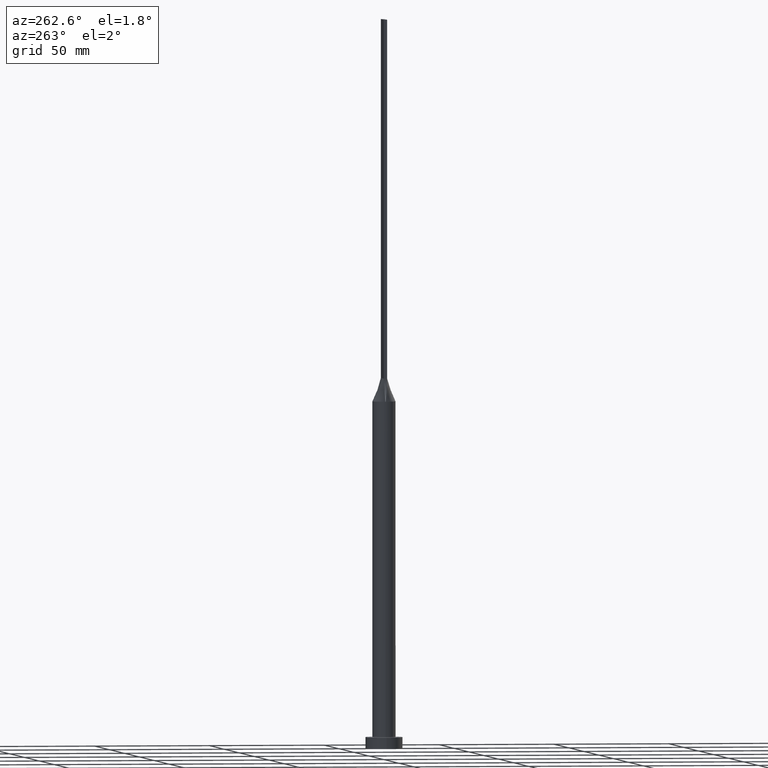
[diagram: clean part render]
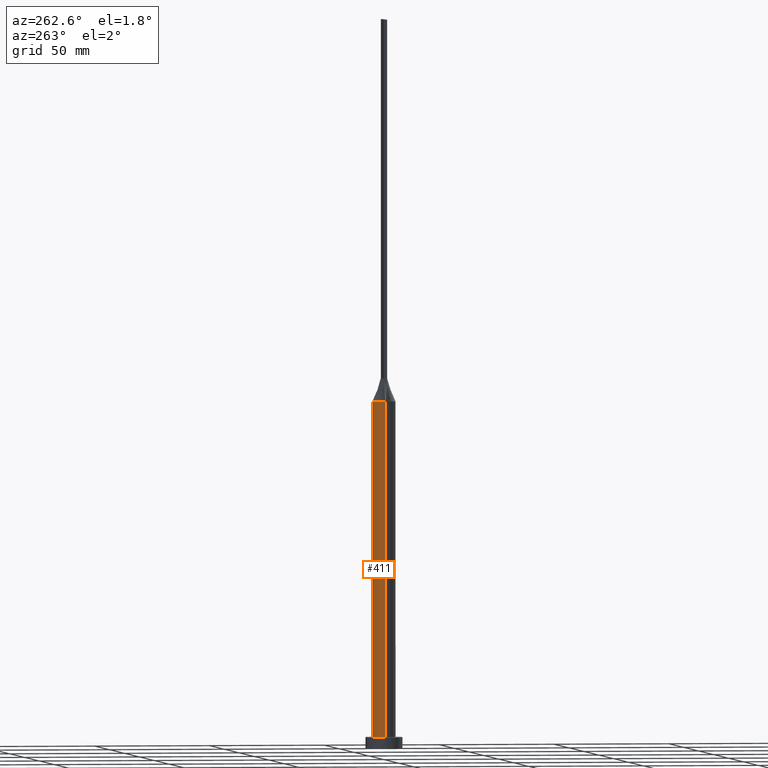
[diagram: same view with one face highlighted and labeled with its STEP entity id]
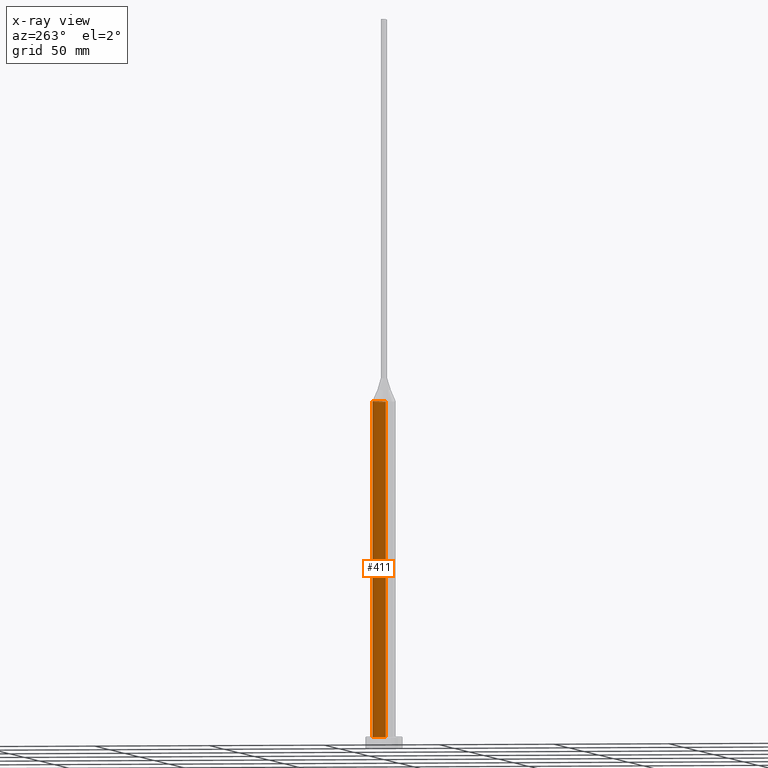
[diagram: x-ray of the same camera — body ghosted, the highlighted face saturated]
A machine part, auxiliary view. The second image highlights one B-rep face of the part: STEP entity #411.
The next image is the same camera in x-ray: the body ghosted, the highlighted face saturated — about 0% of this face is hidden behind the body in this view.
In plain terms, the highlighted cylindrical surface (edge-blend (fillet) strip) has radius 5 mm, axis along (-0, -0, -1).
Its self-contained STEP definition (entity closure, byte-faithful):
#1 = EDGE_CURVE ( 'NONE', #397, #456, #499, .T. ) ;
#2 = CARTESIAN_POINT ( 'NONE',  ( -4.938831943662458812, 0.7798155886440081286, 150.0000000000000000 ) ) ;
#11 = DIRECTION ( 'NONE',  ( 1.000000000000000000, 0.000000000000000000, 0.000000000000000000 ) ) ;
#20 = CARTESIAN_POINT ( 'NONE',  ( 0.000000000000000000, 0.000000000000000000, 150.0000000000000000 ) ) ;
#29 = VECTOR ( 'NONE', #381, 1000.000000000000000 ) ;
#36 = VERTEX_POINT ( 'NONE', #251 ) ;
#40 = CARTESIAN_POINT ( 'NONE',  ( 4.874625637456157179, 1.186344398896585606, 150.0000000000000568 ) ) ;
#63 = DIRECTION ( 'NONE',  ( 0.000000000000000000, 0.000000000000000000, 1.000000000000000000 ) ) ;
#66 = EDGE_CURVE ( 'NONE', #549, #453, #144, .T. ) ;
#69 = CIRCLE ( 'NONE', #155, 5.000000000000000000 ) ;
#77 = CARTESIAN_POINT ( 'NONE',  ( -0.7119876437238006339, 4.961551549233178982, 149.9999999999999432 ) ) ;
#80 = CARTESIAN_POINT ( 'NONE',  ( -4.753727492665067444, 1.629988260829202007, 150.0000000000000568 ) ) ;
#85 = CARTESIAN_POINT ( 'NONE',  ( 2.643217737595826566, 4.256483892511437439, 150.0000000000000568 ) ) ;
#95 = AXIS2_PLACEMENT_3D ( 'NONE', #292, #97, #330 ) ;
#97 = DIRECTION ( 'NONE',  ( 0.000000000000000000, 0.000000000000000000, 1.000000000000000000 ) ) ;
#107 = ORIENTED_EDGE ( 'NONE', *, *, #211, .T. ) ;
#124 = AXIS2_PLACEMENT_3D ( 'NONE', #612, #567, #334 ) ;
#133 = CARTESIAN_POINT ( 'NONE',  ( 4.029217956433126524, 3.021257902548482477, 150.0000000000000000 ) ) ;
#141 = CARTESIAN_POINT ( 'NONE',  ( 3.168723755431093192, 3.881165404529570040, 149.9999999999999716 ) ) ;
#144 = LINE ( 'NONE', #571, #215 ) ;
#155 = AXIS2_PLACEMENT_3D ( 'NONE', #20, #554, #462 ) ;
#172 = CARTESIAN_POINT ( 'NONE',  ( -4.029217956433124748, 3.021257902548482033, 150.0000000000000000 ) ) ;
#186 = CARTESIAN_POINT ( 'NONE',  ( 0.3560391241594590972, 5.000000000000001776, 150.0000000000000568 ) ) ;
#211 = EDGE_CURVE ( 'NONE', #453, #322, #503, .T. ) ;
#215 = VECTOR ( 'NONE', #338, 1000.000000000000000 ) ;
#224 = ORIENTED_EDGE ( 'NONE', *, *, #1, .F. ) ;
#229 = ORIENTED_EDGE ( 'NONE', *, *, #432, .F. ) ;
#232 = CARTESIAN_POINT ( 'NONE',  ( 4.332026455536839293, 2.547220758687718689, 150.0000000000000000 ) ) ;
#235 = LINE ( 'NONE', #423, #29 ) ;
#246 = CARTESIAN_POINT ( 'NONE',  ( -4.938831943662458812, 0.7798155886440081286, 150.0000000000000000 ) ) ;
#251 = CARTESIAN_POINT ( 'NONE',  ( -4.999812818728077701, -1.193032336741890821E-15, 150.0000000000000000 ) ) ;
#256 = CARTESIAN_POINT ( 'NONE',  ( 0.000000000000000000, 0.000000000000000000, 5.000000000000000000 ) ) ;
#269 = CARTESIAN_POINT ( 'NONE',  ( 1.400150253878312823, 4.812847332616943419, 149.9999999999999716 ) ) ;
#272 = CARTESIAN_POINT ( 'NONE',  ( -2.353781608410062010, 4.424438117685770777, 149.9999999999999432 ) ) ;
#279 = CARTESIAN_POINT ( 'NONE',  ( 2.353781608410062454, 4.424438117685770777, 150.0000000000000000 ) ) ;
#292 = CARTESIAN_POINT ( 'NONE',  ( 0.000000000000000000, 0.000000000000000000, 150.0000000000000000 ) ) ;
#310 = AXIS2_PLACEMENT_3D ( 'NONE', #256, #63, #11 ) ;
#312 = CARTESIAN_POINT ( 'NONE',  ( 4.753727492665065668, 1.629988260829201563, 150.0000000000000000 ) ) ;
#315 = CARTESIAN_POINT ( 'NONE',  ( 0.7119876437238013001, 4.961551549233180758, 149.9999999999999716 ) ) ;
#319 = CARTESIAN_POINT ( 'NONE',  ( -1.732223102076449806, 4.702695359254402518, 149.9999999999999432 ) ) ;
#322 = VERTEX_POINT ( 'NONE', #598 ) ;
#325 = CARTESIAN_POINT ( 'NONE',  ( -1.400150253878312823, 4.812847332616943419, 149.9999999999999432 ) ) ;
#329 = EDGE_CURVE ( 'NONE', #456, #36, #69, .T. ) ;
#330 = DIRECTION ( 'NONE',  ( 1.000000000000000000, 0.000000000000000000, 0.000000000000000000 ) ) ;
#334 = DIRECTION ( 'NONE',  ( -1.000000000000000000, 0.000000000000000000, 0.000000000000000000 ) ) ;
#338 = DIRECTION ( 'NONE',  ( -0.000000000000000000, -0.000000000000000000, -1.000000000000000000 ) ) ;
#350 = ORIENTED_EDGE ( 'NONE', *, *, #329, .F. ) ;
#358 = CARTESIAN_POINT ( 'NONE',  ( -4.332026455536841070, 2.547220758687717801, 150.0000000000000000 ) ) ;
#378 = CARTESIAN_POINT ( 'NONE',  ( 5.000000000000000000, 6.123233995736766282E-16, 5.000000000000000000 ) ) ;
#381 = DIRECTION ( 'NONE',  ( -0.000000000000000000, -0.000000000000000000, -1.000000000000000000 ) ) ;
#397 = VERTEX_POINT ( 'NONE', #515 ) ;
#403 = EDGE_CURVE ( 'NONE', #36, #322, #235, .T. ) ;
#411 = ADVANCED_FACE ( 'NONE', ( #429 ), #480, .T. ) ;
#422 = CARTESIAN_POINT ( 'NONE',  ( 4.999812818728077701, 1.241126956226958231E-15, 150.0000000000000000 ) ) ;
#423 = CARTESIAN_POINT ( 'NONE',  ( -5.000000000000000000, 0.000000000000000000, 150.0000000000000000 ) ) ;
#424 = CARTESIAN_POINT ( 'NONE',  ( 1.732223102076450250, 4.702695359254404295, 149.9999999999999716 ) ) ;
#428 = CARTESIAN_POINT ( 'NONE',  ( -2.643217737595827455, 4.256483892511438327, 150.0000000000000000 ) ) ;
#429 = FACE_OUTER_BOUND ( 'NONE', #558, .T. ) ;
#432 = EDGE_CURVE ( 'NONE', #549, #397, #513, .T. ) ;
#451 = ORIENTED_EDGE ( 'NONE', *, *, #403, .F. ) ;
#453 = VERTEX_POINT ( 'NONE', #378 ) ;
#456 = VERTEX_POINT ( 'NONE', #246 ) ;
#459 = CARTESIAN_POINT ( 'NONE',  ( -3.404830936252120299, 3.673931880027067720, 150.0000000000000000 ) ) ;
#462 = DIRECTION ( 'NONE',  ( 1.000000000000000000, 0.000000000000000000, 0.000000000000000000 ) ) ;
#470 = CARTESIAN_POINT ( 'NONE',  ( -3.168723755431092748, 3.881165404529570484, 150.0000000000000000 ) ) ;
#480 = CYLINDRICAL_SURFACE ( 'NONE', #124, 5.000000000000000000 ) ;
#499 = B_SPLINE_CURVE_WITH_KNOTS ( 'NONE', 3,
 ( #552, #40, #312, #232, #133, #516, #141, #85, #279, #424, #269, #315, #186, #565, #77, #325, #319, #272, #428, #470, #459, #172, #358, #80, #526, #2 ),
 .UNSPECIFIED., .F., .F.,
 ( 4, 2, 2, 2, 2, 2, 2, 2, 2, 2, 2, 2, 4 ),
 ( 0.000000000000000000, 0.1250000000000001388, 0.2500000000000002220, 0.3125000000000002776, 0.3750000000000002776, 0.4375000000000002776, 0.5000000000000002220, 0.5625000000000002220, 0.6250000000000001110, 0.6875000000000001110, 0.7500000000000001110, 0.8750000000000001110, 1.000000000000000000 ),
 .UNSPECIFIED. ) ;
#503 = CIRCLE ( 'NONE', #310, 5.000000000000000000 ) ;
#513 = CIRCLE ( 'NONE', #95, 5.000000000000000000 ) ;
#515 = CARTESIAN_POINT ( 'NONE',  ( 4.938814826645345768, 0.7798128673650538412, 150.0000000000000000 ) ) ;
#516 = CARTESIAN_POINT ( 'NONE',  ( 3.404830936252119411, 3.673931880027066388, 150.0000000000000000 ) ) ;
#526 = CARTESIAN_POINT ( 'NONE',  ( -4.874625637456156291, 1.186344398896586716, 150.0000000000000000 ) ) ;
#549 = VERTEX_POINT ( 'NONE', #422 ) ;
#552 = CARTESIAN_POINT ( 'NONE',  ( 4.938814826645345768, 0.7798128673650538412, 150.0000000000000000 ) ) ;
#554 = DIRECTION ( 'NONE',  ( 0.000000000000000000, 0.000000000000000000, 1.000000000000000000 ) ) ;
#558 = EDGE_LOOP ( 'NONE', ( #229, #610, #107, #451, #350, #224 ) ) ;
#565 = CARTESIAN_POINT ( 'NONE',  ( -0.3560391241594593192, 5.000000000000000000, 150.0000000000000284 ) ) ;
#567 = DIRECTION ( 'NONE',  ( -0.000000000000000000, -0.000000000000000000, -1.000000000000000000 ) ) ;
#571 = CARTESIAN_POINT ( 'NONE',  ( 5.000000000000000000, 6.123233995736766282E-16, 150.0000000000000000 ) ) ;
#598 = CARTESIAN_POINT ( 'NONE',  ( -5.000000000000000000, 0.000000000000000000, 5.000000000000000000 ) ) ;
#610 = ORIENTED_EDGE ( 'NONE', *, *, #66, .T. ) ;
#612 = CARTESIAN_POINT ( 'NONE',  ( 0.000000000000000000, 0.000000000000000000, 150.0000000000000000 ) ) ;